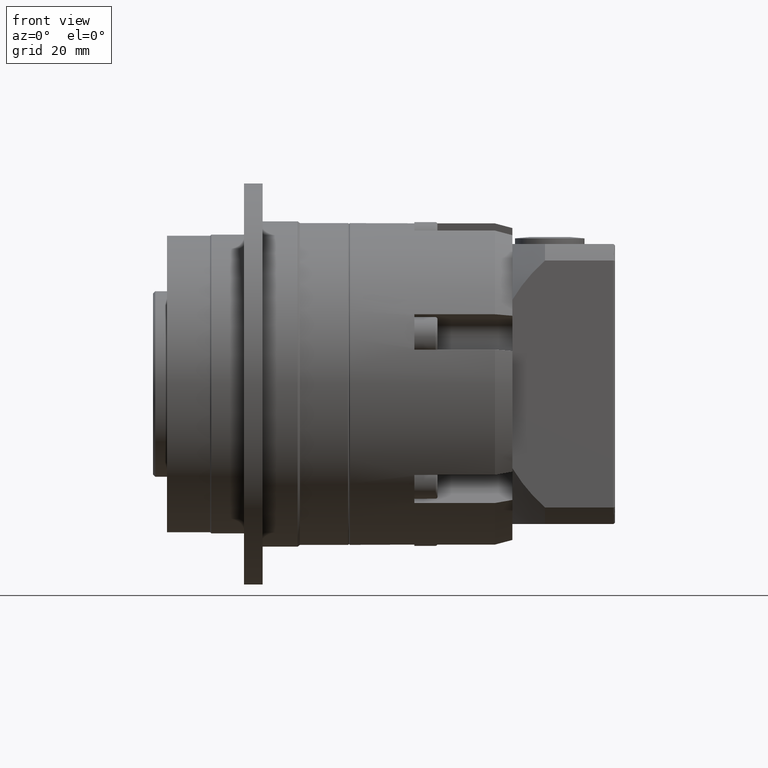
[diagram: clean part render]
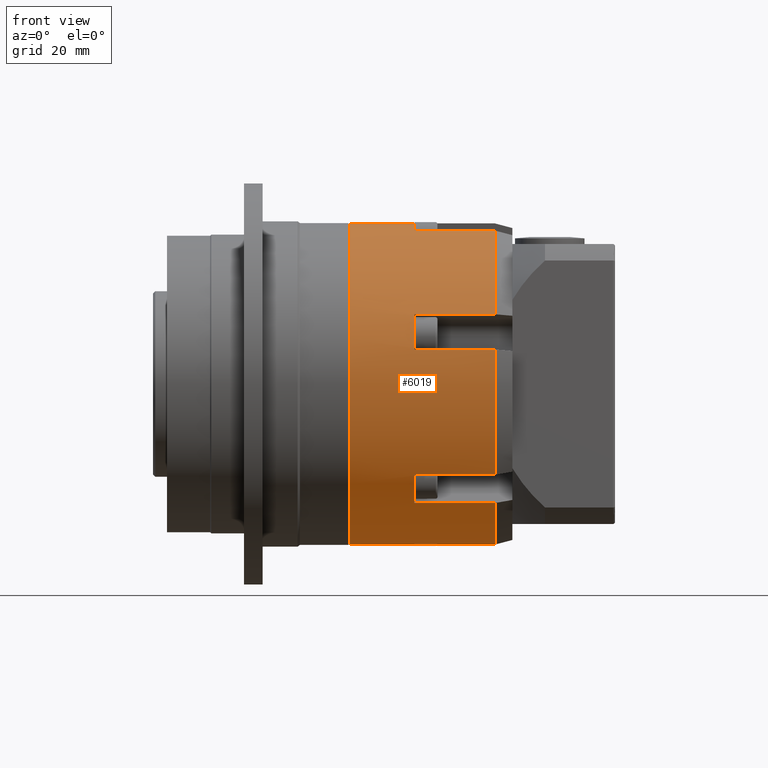
[diagram: same view with one face highlighted and labeled with its STEP entity id]
A machine part, front view. The second image highlights one B-rep face of the part: STEP entity #6019.
In plain terms, the highlighted cylindrical surface (bore or boss wall) has radius 34.5 mm, axis along (1, -0, 0).
Its self-contained STEP definition (entity closure, byte-faithful):
#211=LINE('',#9174,#504);
#231=LINE('',#9289,#524);
#251=LINE('',#9402,#544);
#320=LINE('',#10038,#613);
#321=LINE('',#10042,#614);
#322=LINE('',#10050,#615);
#323=LINE('',#10053,#616);
#324=LINE('',#10057,#617);
#325=LINE('',#10065,#618);
#326=LINE('',#10069,#619);
#327=LINE('',#10077,#620);
#328=LINE('',#10080,#621);
#504=VECTOR('',#7392,17.2679491924311);
#524=VECTOR('',#7464,17.2679491924311);
#544=VECTOR('',#7534,17.2679491924311);
#613=VECTOR('',#8049,17.2679491924311);
#614=VECTOR('',#8052,17.2679491924311);
#615=VECTOR('',#8059,17.2679491924311);
#616=VECTOR('',#8062,17.2679491924311);
#617=VECTOR('',#8065,17.2679491924311);
#618=VECTOR('',#8072,17.2679491924311);
#619=VECTOR('',#8075,17.2679491924311);
#620=VECTOR('',#8082,17.2679491924311);
#621=VECTOR('',#8085,17.2679491924311);
#1167=FACE_BOUND('',#2007,.T.);
#1486=FACE_OUTER_BOUND('',#2006,.T.);
#2006=EDGE_LOOP('',(#4693,#4694,#4695,#4696,#4697,#4698,#4699,#4700,#4701,
#4702,#4703,#4704,#4705,#4706,#4707,#4708,#4709,#4710,#4711,#4712,#4713,
#4714,#4715,#4716,#4717,#4718,#4719,#4720,#4721,#4722,#4723,#4724,#4725,
#4726,#4727,#4728));
#2007=EDGE_LOOP('',(#4729));
#2309=CIRCLE('',#6375,34.5);
#2318=CIRCLE('',#6397,34.5);
#2319=CIRCLE('',#6399,34.5);
#2320=CIRCLE('',#6401,34.5);
#2328=CIRCLE('',#6422,34.5);
#2329=CIRCLE('',#6424,34.5);
#2330=CIRCLE('',#6426,34.5);
#2339=CIRCLE('',#6448,34.5);
#2340=CIRCLE('',#6450,34.5);
#2448=CIRCLE('',#6664,34.5);
#2449=CIRCLE('',#6666,34.5);
#2450=CIRCLE('',#6667,34.5);
#2451=CIRCLE('',#6668,34.5);
#2452=CIRCLE('',#6669,34.5);
#2453=CIRCLE('',#6670,34.5);
#2454=CIRCLE('',#6671,34.5);
#2455=CIRCLE('',#6672,34.5);
#2456=CIRCLE('',#6673,34.5);
#2457=CIRCLE('',#6674,34.5);
#2458=CIRCLE('',#6675,34.5);
#2459=CIRCLE('',#6676,34.5);
#2460=CIRCLE('',#6677,34.5);
#2461=CIRCLE('',#6678,34.5);
#2462=CIRCLE('',#6679,34.5);
#2463=CIRCLE('',#6680,34.5);
#2672=VERTEX_POINT('',#9074);
#2673=VERTEX_POINT('',#9075);
#2695=VERTEX_POINT('',#9169);
#2696=VERTEX_POINT('',#9173);
#2699=VERTEX_POINT('',#9183);
#2700=VERTEX_POINT('',#9189);
#2701=VERTEX_POINT('',#9190);
#2723=VERTEX_POINT('',#9284);
#2724=VERTEX_POINT('',#9288);
#2726=VERTEX_POINT('',#9296);
#2727=VERTEX_POINT('',#9302);
#2728=VERTEX_POINT('',#9303);
#2750=VERTEX_POINT('',#9397);
#2751=VERTEX_POINT('',#9401);
#2754=VERTEX_POINT('',#9411);
#2898=VERTEX_POINT('',#10033);
#2899=VERTEX_POINT('',#10036);
#2900=VERTEX_POINT('',#10039);
#2901=VERTEX_POINT('',#10041);
#2902=VERTEX_POINT('',#10043);
#2903=VERTEX_POINT('',#10045);
#2904=VERTEX_POINT('',#10047);
#2905=VERTEX_POINT('',#10049);
#2906=VERTEX_POINT('',#10051);
#2907=VERTEX_POINT('',#10054);
#2908=VERTEX_POINT('',#10056);
#2909=VERTEX_POINT('',#10058);
#2910=VERTEX_POINT('',#10060);
#2911=VERTEX_POINT('',#10062);
#2912=VERTEX_POINT('',#10064);
#2913=VERTEX_POINT('',#10066);
#2914=VERTEX_POINT('',#10068);
#2915=VERTEX_POINT('',#10070);
#2916=VERTEX_POINT('',#10072);
#2917=VERTEX_POINT('',#10074);
#2918=VERTEX_POINT('',#10076);
#2919=VERTEX_POINT('',#10078);
#3247=EDGE_CURVE('',#2672,#2673,#2309,.T.);
#3279=EDGE_CURVE('',#2696,#2695,#211,.T.);
#3284=EDGE_CURVE('',#2699,#2672,#2318,.T.);
#3286=EDGE_CURVE('',#2673,#2696,#2319,.T.);
#3287=EDGE_CURVE('',#2700,#2701,#2320,.T.);
#3319=EDGE_CURVE('',#2724,#2723,#231,.T.);
#3323=EDGE_CURVE('',#2726,#2700,#2328,.T.);
#3325=EDGE_CURVE('',#2701,#2724,#2329,.T.);
#3326=EDGE_CURVE('',#2727,#2728,#2330,.T.);
#3358=EDGE_CURVE('',#2751,#2750,#251,.T.);
#3363=EDGE_CURVE('',#2754,#2727,#2339,.T.);
#3365=EDGE_CURVE('',#2728,#2751,#2340,.T.);
#3557=EDGE_CURVE('',#2898,#2898,#2448,.T.);
#3558=EDGE_CURVE('',#2899,#2695,#2449,.T.);
#3559=EDGE_CURVE('',#2899,#2726,#320,.T.);
#3560=EDGE_CURVE('',#2900,#2723,#2450,.T.);
#3561=EDGE_CURVE('',#2900,#2901,#321,.T.);
#3562=EDGE_CURVE('',#2901,#2902,#2451,.T.);
#3563=EDGE_CURVE('',#2902,#2903,#2452,.T.);
#3564=EDGE_CURVE('',#2903,#2904,#2453,.T.);
#3565=EDGE_CURVE('',#2904,#2905,#322,.T.);
#3566=EDGE_CURVE('',#2906,#2905,#2454,.T.);
#3567=EDGE_CURVE('',#2906,#2754,#323,.T.);
#3568=EDGE_CURVE('',#2907,#2750,#2455,.T.);
#3569=EDGE_CURVE('',#2907,#2908,#324,.T.);
#3570=EDGE_CURVE('',#2908,#2909,#2456,.T.);
#3571=EDGE_CURVE('',#2909,#2910,#2457,.T.);
#3572=EDGE_CURVE('',#2910,#2911,#2458,.T.);
#3573=EDGE_CURVE('',#2911,#2912,#325,.T.);
#3574=EDGE_CURVE('',#2913,#2912,#2459,.T.);
#3575=EDGE_CURVE('',#2913,#2914,#326,.T.);
#3576=EDGE_CURVE('',#2914,#2915,#2460,.T.);
#3577=EDGE_CURVE('',#2915,#2916,#2461,.T.);
#3578=EDGE_CURVE('',#2916,#2917,#2462,.T.);
#3579=EDGE_CURVE('',#2917,#2918,#327,.T.);
#3580=EDGE_CURVE('',#2919,#2918,#2463,.T.);
#3581=EDGE_CURVE('',#2919,#2699,#328,.T.);
#4693=ORIENTED_EDGE('',*,*,#3279,.T.);
#4694=ORIENTED_EDGE('',*,*,#3558,.F.);
#4695=ORIENTED_EDGE('',*,*,#3559,.T.);
#4696=ORIENTED_EDGE('',*,*,#3323,.T.);
#4697=ORIENTED_EDGE('',*,*,#3287,.T.);
#4698=ORIENTED_EDGE('',*,*,#3325,.T.);
#4699=ORIENTED_EDGE('',*,*,#3319,.T.);
#4700=ORIENTED_EDGE('',*,*,#3560,.F.);
#4701=ORIENTED_EDGE('',*,*,#3561,.T.);
#4702=ORIENTED_EDGE('',*,*,#3562,.T.);
#4703=ORIENTED_EDGE('',*,*,#3563,.T.);
#4704=ORIENTED_EDGE('',*,*,#3564,.T.);
#4705=ORIENTED_EDGE('',*,*,#3565,.T.);
#4706=ORIENTED_EDGE('',*,*,#3566,.F.);
#4707=ORIENTED_EDGE('',*,*,#3567,.T.);
#4708=ORIENTED_EDGE('',*,*,#3363,.T.);
#4709=ORIENTED_EDGE('',*,*,#3326,.T.);
#4710=ORIENTED_EDGE('',*,*,#3365,.T.);
#4711=ORIENTED_EDGE('',*,*,#3358,.T.);
#4712=ORIENTED_EDGE('',*,*,#3568,.F.);
#4713=ORIENTED_EDGE('',*,*,#3569,.T.);
#4714=ORIENTED_EDGE('',*,*,#3570,.T.);
#4715=ORIENTED_EDGE('',*,*,#3571,.T.);
#4716=ORIENTED_EDGE('',*,*,#3572,.T.);
#4717=ORIENTED_EDGE('',*,*,#3573,.T.);
#4718=ORIENTED_EDGE('',*,*,#3574,.F.);
#4719=ORIENTED_EDGE('',*,*,#3575,.T.);
#4720=ORIENTED_EDGE('',*,*,#3576,.T.);
#4721=ORIENTED_EDGE('',*,*,#3577,.T.);
#4722=ORIENTED_EDGE('',*,*,#3578,.T.);
#4723=ORIENTED_EDGE('',*,*,#3579,.T.);
#4724=ORIENTED_EDGE('',*,*,#3580,.F.);
#4725=ORIENTED_EDGE('',*,*,#3581,.T.);
#4726=ORIENTED_EDGE('',*,*,#3284,.T.);
#4727=ORIENTED_EDGE('',*,*,#3247,.T.);
#4728=ORIENTED_EDGE('',*,*,#3286,.T.);
#4729=ORIENTED_EDGE('',*,*,#3557,.F.);
#5432=CYLINDRICAL_SURFACE('',#6665,34.5);
#6019=ADVANCED_FACE('',(#1486,#1167),#5432,.T.);
#6375=AXIS2_PLACEMENT_3D('',#9076,#7340,#7341);
#6397=AXIS2_PLACEMENT_3D('',#9184,#7403,#7404);
#6399=AXIS2_PLACEMENT_3D('',#9187,#7408,#7409);
#6401=AXIS2_PLACEMENT_3D('',#9191,#7412,#7413);
#6422=AXIS2_PLACEMENT_3D('',#9297,#7473,#7474);
#6424=AXIS2_PLACEMENT_3D('',#9300,#7478,#7479);
#6426=AXIS2_PLACEMENT_3D('',#9304,#7482,#7483);
#6448=AXIS2_PLACEMENT_3D('',#9412,#7545,#7546);
#6450=AXIS2_PLACEMENT_3D('',#9415,#7550,#7551);
#6664=AXIS2_PLACEMENT_3D('',#10034,#8043,#8044);
#6665=AXIS2_PLACEMENT_3D('',#10035,#8045,#8046);
#6666=AXIS2_PLACEMENT_3D('',#10037,#8047,#8048);
#6667=AXIS2_PLACEMENT_3D('',#10040,#8050,#8051);
#6668=AXIS2_PLACEMENT_3D('',#10044,#8053,#8054);
#6669=AXIS2_PLACEMENT_3D('',#10046,#8055,#8056);
#6670=AXIS2_PLACEMENT_3D('',#10048,#8057,#8058);
#6671=AXIS2_PLACEMENT_3D('',#10052,#8060,#8061);
#6672=AXIS2_PLACEMENT_3D('',#10055,#8063,#8064);
#6673=AXIS2_PLACEMENT_3D('',#10059,#8066,#8067);
#6674=AXIS2_PLACEMENT_3D('',#10061,#8068,#8069);
#6675=AXIS2_PLACEMENT_3D('',#10063,#8070,#8071);
#6676=AXIS2_PLACEMENT_3D('',#10067,#8073,#8074);
#6677=AXIS2_PLACEMENT_3D('',#10071,#8076,#8077);
#6678=AXIS2_PLACEMENT_3D('',#10073,#8078,#8079);
#6679=AXIS2_PLACEMENT_3D('',#10075,#8080,#8081);
#6680=AXIS2_PLACEMENT_3D('',#10079,#8083,#8084);
#7340=DIRECTION('center_axis',(-1.,9.66417903210881E-16,-3.05876261623541E-15));
#7341=DIRECTION('ref_axis',(9.66417903210868E-16,1.,4.10912623371969E-15));
#7392=DIRECTION('',(1.,-9.66417903210881E-16,3.05876261623541E-15));
#7403=DIRECTION('center_axis',(-1.,9.66417903210881E-16,-3.05876261623541E-15));
#7404=DIRECTION('ref_axis',(9.66417903210868E-16,1.,4.10912623371969E-15));
#7408=DIRECTION('center_axis',(-1.,9.66417903210881E-16,-3.05876261623541E-15));
#7409=DIRECTION('ref_axis',(9.66417903210868E-16,1.,4.10912623371969E-15));
#7412=DIRECTION('center_axis',(-1.,9.66417903210881E-16,-3.05876261623541E-15));
#7413=DIRECTION('ref_axis',(9.66417903210868E-16,1.,4.10912623371969E-15));
#7464=DIRECTION('',(1.,-9.66417903210881E-16,3.05876261623541E-15));
#7473=DIRECTION('center_axis',(-1.,9.66417903210881E-16,-3.05876261623541E-15));
#7474=DIRECTION('ref_axis',(9.66417903210868E-16,1.,4.10912623371969E-15));
#7478=DIRECTION('center_axis',(-1.,9.66417903210881E-16,-3.05876261623541E-15));
#7479=DIRECTION('ref_axis',(9.66417903210868E-16,1.,4.10912623371969E-15));
#7482=DIRECTION('center_axis',(-1.,9.66417903210881E-16,-3.05876261623541E-15));
#7483=DIRECTION('ref_axis',(9.66417903210868E-16,1.,4.10912623371969E-15));
#7534=DIRECTION('',(1.,-9.66417903210881E-16,3.05876261623541E-15));
#7545=DIRECTION('center_axis',(-1.,9.66417903210881E-16,-3.05876261623541E-15));
#7546=DIRECTION('ref_axis',(9.66417903210868E-16,1.,4.10912623371969E-15));
#7550=DIRECTION('center_axis',(-1.,9.66417903210881E-16,-3.05876261623541E-15));
#7551=DIRECTION('ref_axis',(9.66417903210868E-16,1.,4.10912623371969E-15));
#8043=DIRECTION('center_axis',(-1.,9.66417903210881E-16,-3.05876261623541E-15));
#8044=DIRECTION('ref_axis',(-9.66417903210868E-16,-1.,-4.10912623371969E-15));
#8045=DIRECTION('center_axis',(1.,-9.66417903210881E-16,3.05876261623541E-15));
#8046=DIRECTION('ref_axis',(9.66417903210868E-16,1.,4.10912623371969E-15));
#8047=DIRECTION('center_axis',(1.,-9.66417903210881E-16,3.05876261623541E-15));
#8048=DIRECTION('ref_axis',(3.05876261623542E-15,4.10912623371969E-15,-1.));
#8049=DIRECTION('',(-1.,9.66417903210881E-16,-3.05876261623541E-15));
#8050=DIRECTION('center_axis',(1.,-9.66417903210881E-16,3.05876261623541E-15));
#8051=DIRECTION('ref_axis',(3.05876261623542E-15,4.10912623371969E-15,-1.));
#8052=DIRECTION('',(-1.,9.66417903210881E-16,-3.05876261623541E-15));
#8053=DIRECTION('center_axis',(-1.,9.66417903210881E-16,-3.05876261623541E-15));
#8054=DIRECTION('ref_axis',(9.66417903210868E-16,1.,4.10912623371969E-15));
#8055=DIRECTION('center_axis',(-1.,9.66417903210881E-16,-3.05876261623541E-15));
#8056=DIRECTION('ref_axis',(9.66417903210868E-16,1.,4.10912623371969E-15));
#8057=DIRECTION('center_axis',(-1.,9.66417903210881E-16,-3.05876261623541E-15));
#8058=DIRECTION('ref_axis',(9.66417903210868E-16,1.,4.10912623371969E-15));
#8059=DIRECTION('',(1.,-9.66417903210881E-16,3.05876261623541E-15));
#8060=DIRECTION('center_axis',(1.,-9.66417903210881E-16,3.05876261623541E-15));
#8061=DIRECTION('ref_axis',(3.05876261623542E-15,4.10912623371969E-15,-1.));
#8062=DIRECTION('',(-1.,9.66417903210881E-16,-3.05876261623541E-15));
#8063=DIRECTION('center_axis',(1.,-9.66417903210881E-16,3.05876261623541E-15));
#8064=DIRECTION('ref_axis',(3.05876261623542E-15,4.10912623371969E-15,-1.));
#8065=DIRECTION('',(-1.,9.66417903210881E-16,-3.05876261623541E-15));
#8066=DIRECTION('center_axis',(-1.,9.66417903210881E-16,-3.05876261623541E-15));
#8067=DIRECTION('ref_axis',(9.66417903210868E-16,1.,4.10912623371969E-15));
#8068=DIRECTION('center_axis',(-1.,9.66417903210881E-16,-3.05876261623541E-15));
#8069=DIRECTION('ref_axis',(9.66417903210868E-16,1.,4.10912623371969E-15));
#8070=DIRECTION('center_axis',(-1.,9.66417903210881E-16,-3.05876261623541E-15));
#8071=DIRECTION('ref_axis',(9.66417903210868E-16,1.,4.10912623371969E-15));
#8072=DIRECTION('',(1.,-9.66417903210881E-16,3.05876261623541E-15));
#8073=DIRECTION('center_axis',(1.,-9.66417903210881E-16,3.05876261623541E-15));
#8074=DIRECTION('ref_axis',(3.05876261623542E-15,4.10912623371969E-15,-1.));
#8075=DIRECTION('',(-1.,9.66417903210881E-16,-3.05876261623541E-15));
#8076=DIRECTION('center_axis',(-1.,9.66417903210881E-16,-3.05876261623541E-15));
#8077=DIRECTION('ref_axis',(9.66417903210868E-16,1.,4.10912623371969E-15));
#8078=DIRECTION('center_axis',(-1.,9.66417903210881E-16,-3.05876261623541E-15));
#8079=DIRECTION('ref_axis',(9.66417903210868E-16,1.,4.10912623371969E-15));
#8080=DIRECTION('center_axis',(-1.,9.66417903210881E-16,-3.05876261623541E-15));
#8081=DIRECTION('ref_axis',(9.66417903210868E-16,1.,4.10912623371969E-15));
#8082=DIRECTION('',(1.,-9.66417903210881E-16,3.05876261623541E-15));
#8083=DIRECTION('center_axis',(1.,-9.66417903210881E-16,3.05876261623541E-15));
#8084=DIRECTION('ref_axis',(3.05876261623542E-15,4.10912623371969E-15,-1.));
#8085=DIRECTION('',(-1.,9.66417903210881E-16,-3.05876261623541E-15));
#9074=CARTESIAN_POINT('',(3.49239396734037,-35.5211635343423,-14.430930773602));
#9075=CARTESIAN_POINT('',(3.49239396734038,-40.5110598097953,-15.4008683541897));
#9076=CARTESIAN_POINT('Origin',(3.49239396734017,-44.5811336692433,18.8582107166003));
#9169=CARTESIAN_POINT('',(20.7603431597714,-41.9691273279212,-15.5427692530589));
#9173=CARTESIAN_POINT('',(3.49239396734028,-41.9691273279212,-15.5427692530589));
#9174=CARTESIAN_POINT('',(5.12636856355583,-41.9691273279212,-15.5427692530589));
#9183=CARTESIAN_POINT('',(3.49239396734028,-34.1161098603399,-14.0162972900465));
#9184=CARTESIAN_POINT('Origin',(3.49239396734017,-44.5811336692433,18.8582107166003));
#9187=CARTESIAN_POINT('Origin',(3.49239396734017,-44.5811336692433,18.8582107166003));
#9189=CARTESIAN_POINT('',(3.49239396734036,-68.8803908024826,-5.63252432285325));
#9190=CARTESIAN_POINT('',(3.49239396734035,-72.215329525083,-1.7961161763558));
#9191=CARTESIAN_POINT('Origin',(3.49239396734017,-44.5811336692433,18.8582107166003));
#9284=CARTESIAN_POINT('',(20.7603431597713,-73.0672530673867,-0.604343114660248));
#9288=CARTESIAN_POINT('',(3.4923939673402,-73.0672530673867,-0.604343114660304));
#9289=CARTESIAN_POINT('',(5.12636856355576,-73.0672530673867,-0.604343114660295));
#9296=CARTESIAN_POINT('',(3.49239396734022,-67.8187808354626,-6.64201975644245));
#9297=CARTESIAN_POINT('Origin',(3.49239396734017,-44.5811336692433,18.8582107166003));
#9300=CARTESIAN_POINT('Origin',(3.49239396734017,-44.5811336692433,18.8582107166003));
#9302=CARTESIAN_POINT('',(3.49239396734017,-53.6411038041442,52.1473522068025));
#9303=CARTESIAN_POINT('',(3.49239396734016,-48.6512075286912,53.1172897873902));
#9304=CARTESIAN_POINT('Origin',(3.49239396734017,-44.5811336692433,18.8582107166003));
#9397=CARTESIAN_POINT('',(20.7603431597712,-47.1931400105654,53.2591906862595));
#9401=CARTESIAN_POINT('',(3.49239396734006,-47.1931400105654,53.2591906862595));
#9402=CARTESIAN_POINT('',(5.12636856355562,-47.1931400105654,53.2591906862595));
#9411=CARTESIAN_POINT('',(3.49239396734006,-55.0461574781466,51.7327187232471));
#9412=CARTESIAN_POINT('Origin',(3.49239396734017,-44.5811336692433,18.8582107166003));
#9415=CARTESIAN_POINT('Origin',(3.49239396734017,-44.5811336692433,18.8582107166003));
#10033=CARTESIAN_POINT('',(-10.3076060326598,-10.0811336692432,18.8582107166004));
#10034=CARTESIAN_POINT('Origin',(-10.3076060326598,-44.5811336692432,18.8582107166002));
#10035=CARTESIAN_POINT('Origin',(5.12636856355573,-44.5811336692433,18.8582107166003));
#10036=CARTESIAN_POINT('',(20.7603431597713,-67.8187808354626,-6.6420197564424));
#10037=CARTESIAN_POINT('Origin',(20.7603431597713,-44.5811336692433,18.8582107166003));
#10038=CARTESIAN_POINT('',(5.12636856355578,-67.8187808354626,-6.64201975644245));
#10039=CARTESIAN_POINT('',(20.7603431597712,-78.283804644366,26.2324882502044));
#10040=CARTESIAN_POINT('Origin',(20.7603431597713,-44.5811336692433,18.8582107166003));
#10041=CARTESIAN_POINT('',(3.49239396734011,-78.283804644366,26.2324882502043));
#10042=CARTESIAN_POINT('',(5.12636856355567,-78.283804644366,26.2324882502044));
#10043=CARTESIAN_POINT('',(3.49239396734024,-77.9403609373833,27.6566171673491));
#10044=CARTESIAN_POINT('Origin',(3.49239396734017,-44.5811336692433,18.8582107166003));
#10045=CARTESIAN_POINT('',(3.49239396734022,-76.2854033845311,32.4629628944343));
#10046=CARTESIAN_POINT('Origin',(3.49239396734017,-44.5811336692433,18.8582107166003));
#10047=CARTESIAN_POINT('',(3.49239396734009,-75.6792594087088,33.7966368549989));
#10048=CARTESIAN_POINT('Origin',(3.49239396734017,-44.5811336692433,18.8582107166003));
#10049=CARTESIAN_POINT('',(20.7603431597712,-75.6792594087088,33.7966368549989));
#10050=CARTESIAN_POINT('',(5.12636856355565,-75.6792594087088,33.7966368549989));
#10051=CARTESIAN_POINT('',(20.7603431597712,-55.0461574781467,51.7327187232471));
#10052=CARTESIAN_POINT('Origin',(20.7603431597713,-44.5811336692433,18.8582107166003));
#10053=CARTESIAN_POINT('',(5.12636856355561,-55.0461574781467,51.7327187232471));
#10054=CARTESIAN_POINT('',(20.7603431597712,-21.3434865030239,44.3584411896431));
#10055=CARTESIAN_POINT('Origin',(20.7603431597713,-44.5811336692433,18.8582107166003));
#10056=CARTESIAN_POINT('',(3.49239396734011,-21.3434865030239,44.358441189643));
#10057=CARTESIAN_POINT('',(5.12636856355567,-21.3434865030239,44.358441189643));
#10058=CARTESIAN_POINT('',(3.49239396734019,-20.2818765360039,43.3489457560538));
#10059=CARTESIAN_POINT('Origin',(3.49239396734017,-44.5811336692433,18.8582107166003));
#10060=CARTESIAN_POINT('',(3.4923939673402,-16.9469378134034,39.5125376095562));
#10061=CARTESIAN_POINT('Origin',(3.49239396734017,-44.5811336692433,18.8582107166003));
#10062=CARTESIAN_POINT('',(3.49239396734014,-16.0950142710998,38.3207645478609));
#10063=CARTESIAN_POINT('Origin',(3.49239396734017,-44.5811336692433,18.8582107166003));
#10064=CARTESIAN_POINT('',(20.7603431597713,-16.0950142710998,38.3207645478609));
#10065=CARTESIAN_POINT('',(5.12636856355569,-16.0950142710998,38.3207645478609));
#10066=CARTESIAN_POINT('',(20.7603431597713,-10.8784626941205,11.4839331829963));
#10067=CARTESIAN_POINT('Origin',(20.7603431597713,-44.5811336692433,18.8582107166003));
#10068=CARTESIAN_POINT('',(3.49239396734022,-10.8784626941205,11.4839331829962));
#10069=CARTESIAN_POINT('',(5.12636856355578,-10.8784626941205,11.4839331829962));
#10070=CARTESIAN_POINT('',(3.49239396734031,-11.2219064011031,10.0598042658516));
#10071=CARTESIAN_POINT('Origin',(3.49239396734017,-44.5811336692433,18.8582107166003));
#10072=CARTESIAN_POINT('',(3.49239396734033,-12.8768639539554,5.25345853876617));
#10073=CARTESIAN_POINT('Origin',(3.49239396734017,-44.5811336692433,18.8582107166003));
#10074=CARTESIAN_POINT('',(3.49239396734024,-13.4830079297777,3.91978457820167));
#10075=CARTESIAN_POINT('Origin',(3.49239396734017,-44.5811336692433,18.8582107166003));
#10076=CARTESIAN_POINT('',(20.7603431597714,-13.4830079297777,3.91978457820172));
#10077=CARTESIAN_POINT('',(5.1263685635558,-13.4830079297777,3.91978457820167));
#10078=CARTESIAN_POINT('',(20.7603431597714,-34.1161098603399,-14.0162972900465));
#10079=CARTESIAN_POINT('Origin',(20.7603431597713,-44.5811336692433,18.8582107166003));
#10080=CARTESIAN_POINT('',(5.12636856355584,-34.1161098603399,-14.0162972900465));